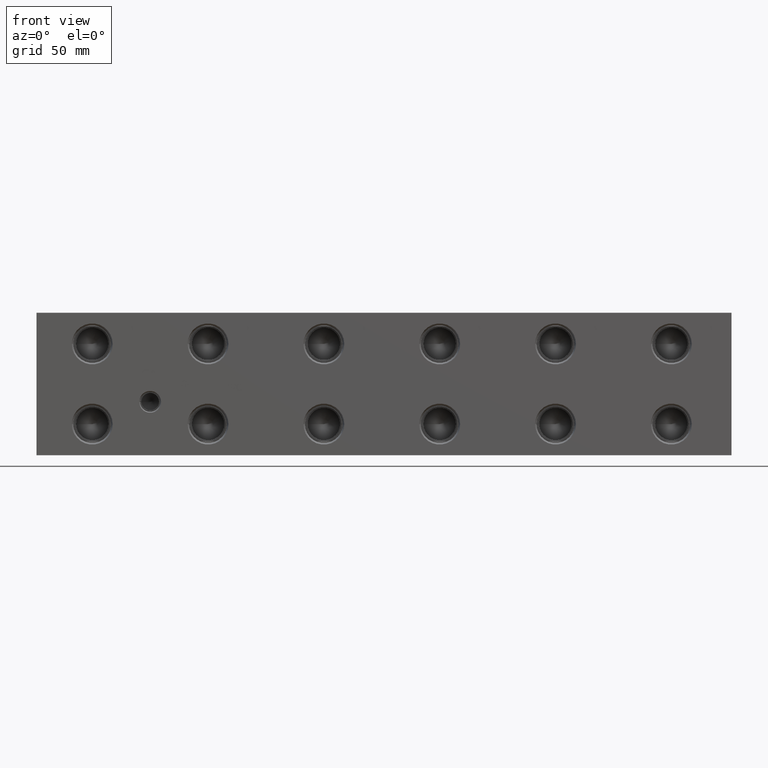
[diagram: clean part render]
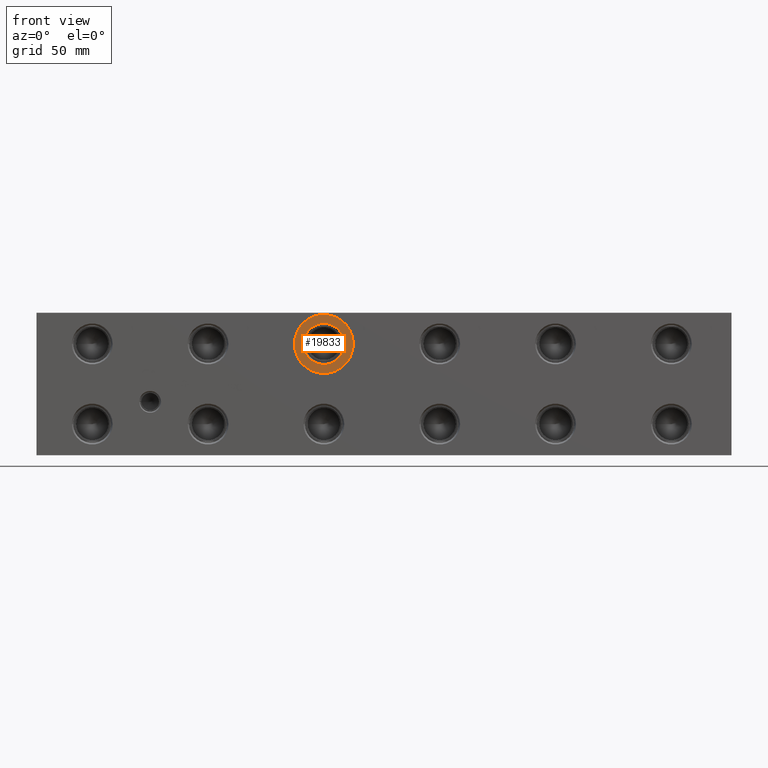
[diagram: same view with one face highlighted and labeled with its STEP entity id]
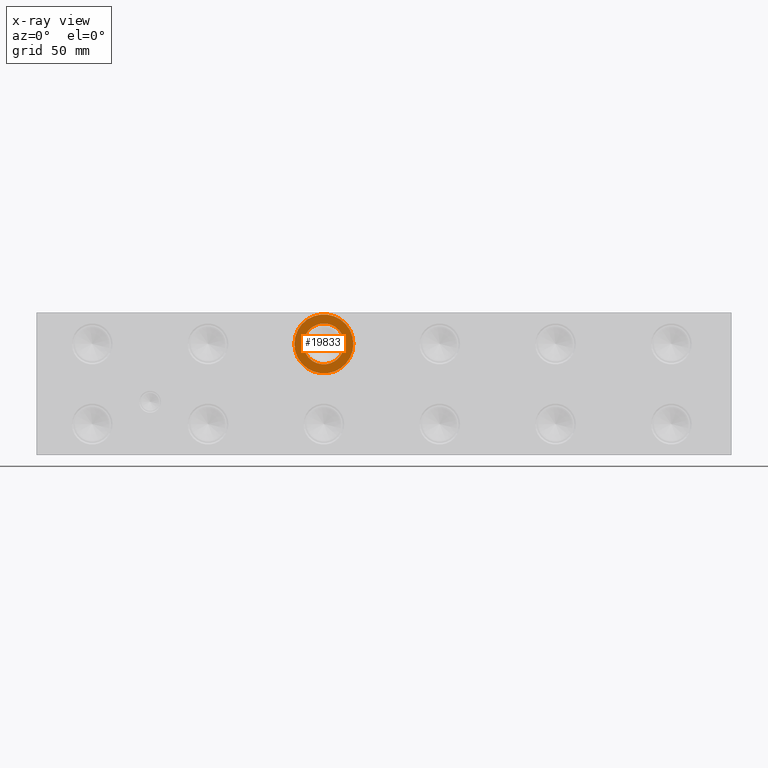
[diagram: x-ray of the same camera — body ghosted, the highlighted face saturated]
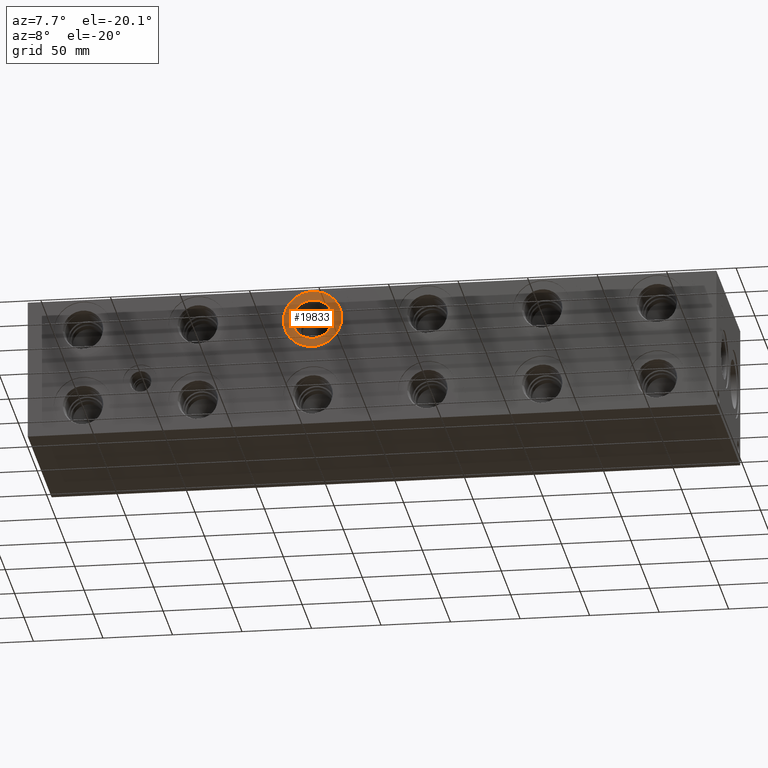
[diagram: same view with one face highlighted and labeled with its STEP entity id]
A machine part, front view. The second image highlights one B-rep face of the part: STEP entity #19833.
The next image is the same camera in x-ray: the body ghosted, the highlighted face saturated — about 0% of this face is hidden behind the body in this view.
A second angle (auxiliary view) of the same face is appended — the face is thin or edge-on in the first view.
In plain terms, the highlighted planar face has unit normal (0, 1, 0).
Its self-contained STEP definition (entity closure, byte-faithful):
#689=CIRCLE('',#20787,21.0185);
#690=CIRCLE('',#20788,21.0185);
#691=CIRCLE('',#20790,14.5923);
#692=CIRCLE('',#20791,14.5923);
#1792=FACE_BOUND('',#3783,.T.);
#2630=FACE_OUTER_BOUND('',#3782,.T.);
#3782=EDGE_LOOP('',(#16318,#16319));
#3783=EDGE_LOOP('',(#16320,#16321));
#8924=VERTEX_POINT('',#33531);
#8925=VERTEX_POINT('',#33533);
#8926=VERTEX_POINT('',#33537);
#8927=VERTEX_POINT('',#33538);
#11540=EDGE_CURVE('',#8924,#8925,#689,.T.);
#11541=EDGE_CURVE('',#8925,#8924,#690,.T.);
#11542=EDGE_CURVE('',#8926,#8927,#691,.T.);
#11543=EDGE_CURVE('',#8927,#8926,#692,.T.);
#16318=ORIENTED_EDGE('',*,*,#11541,.F.);
#16319=ORIENTED_EDGE('',*,*,#11540,.F.);
#16320=ORIENTED_EDGE('',*,*,#11542,.T.);
#16321=ORIENTED_EDGE('',*,*,#11543,.T.);
#18381=PLANE('',#20789);
#19833=ADVANCED_FACE('',(#2630,#1792),#18381,.F.);
#20787=AXIS2_PLACEMENT_3D('',#33534,#24275,#24276);
#20788=AXIS2_PLACEMENT_3D('',#33535,#24277,#24278);
#20789=AXIS2_PLACEMENT_3D('',#33536,#24279,#24280);
#20790=AXIS2_PLACEMENT_3D('',#33539,#24281,#24282);
#20791=AXIS2_PLACEMENT_3D('',#33540,#24283,#24284);
#24275=DIRECTION('center_axis',(0.,1.,0.));
#24276=DIRECTION('ref_axis',(1.,0.,0.));
#24277=DIRECTION('center_axis',(0.,1.,0.));
#24278=DIRECTION('ref_axis',(1.,0.,0.));
#24279=DIRECTION('center_axis',(0.,1.,0.));
#24280=DIRECTION('ref_axis',(0.,0.,1.));
#24281=DIRECTION('center_axis',(0.,1.,0.));
#24282=DIRECTION('ref_axis',(1.,0.,0.));
#24283=DIRECTION('center_axis',(0.,1.,0.));
#24284=DIRECTION('ref_axis',(1.,0.,0.));
#33531=CARTESIAN_POINT('',(183.7563,0.7874,79.375));
#33533=CARTESIAN_POINT('',(225.7933,0.7874,79.375));
#33534=CARTESIAN_POINT('Origin',(204.7748,0.7874,79.375));
#33535=CARTESIAN_POINT('Origin',(204.7748,0.7874,79.375));
#33536=CARTESIAN_POINT('Origin',(219.3671,0.7874,79.375));
#33537=CARTESIAN_POINT('',(219.3671,0.7874,79.375));
#33538=CARTESIAN_POINT('',(190.1825,0.787400000000004,79.375));
#33539=CARTESIAN_POINT('Origin',(204.7748,0.7874,79.375));
#33540=CARTESIAN_POINT('Origin',(204.7748,0.7874,79.375));